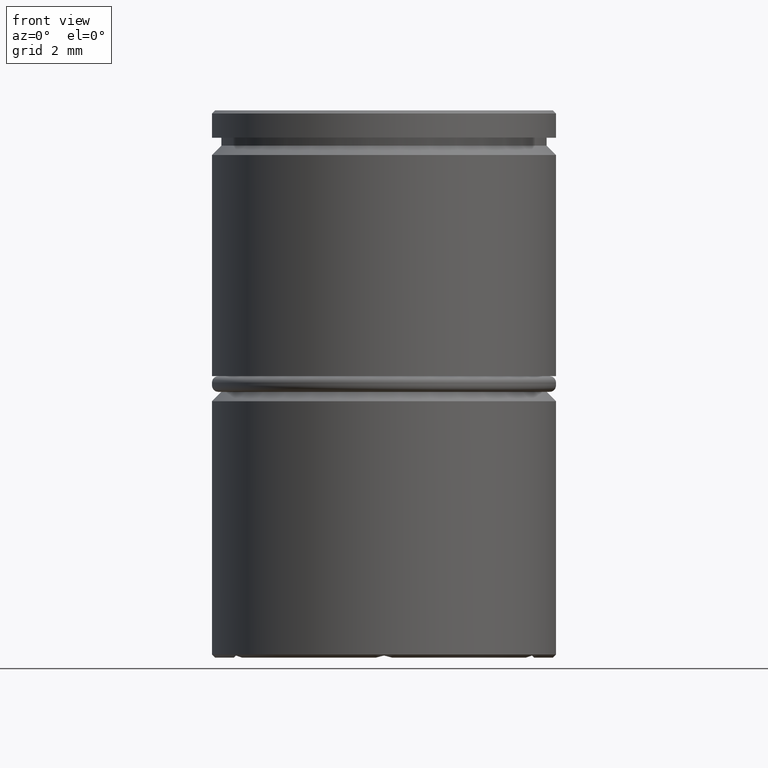
[diagram: clean part render]
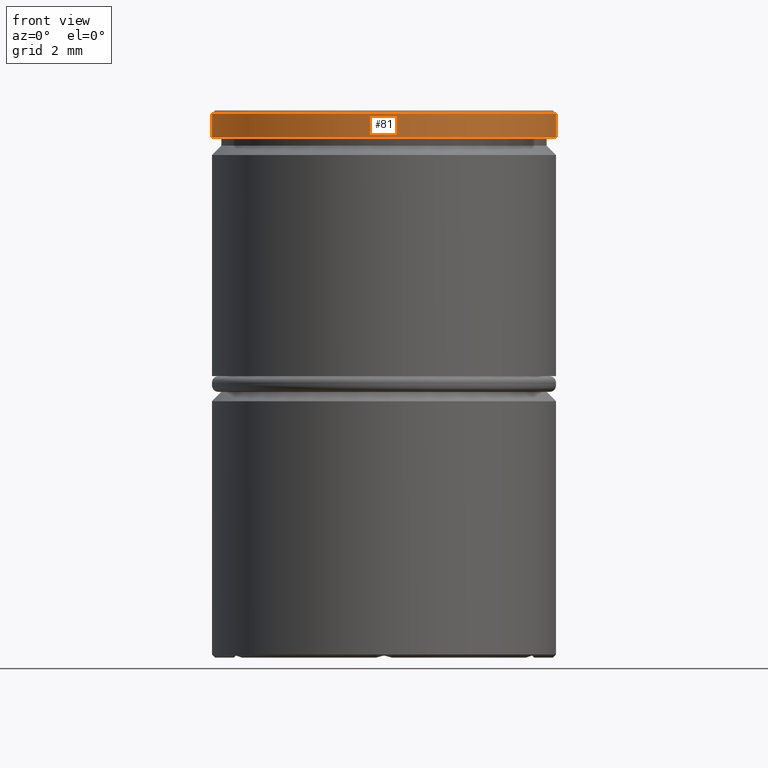
[diagram: same view with one face highlighted and labeled with its STEP entity id]
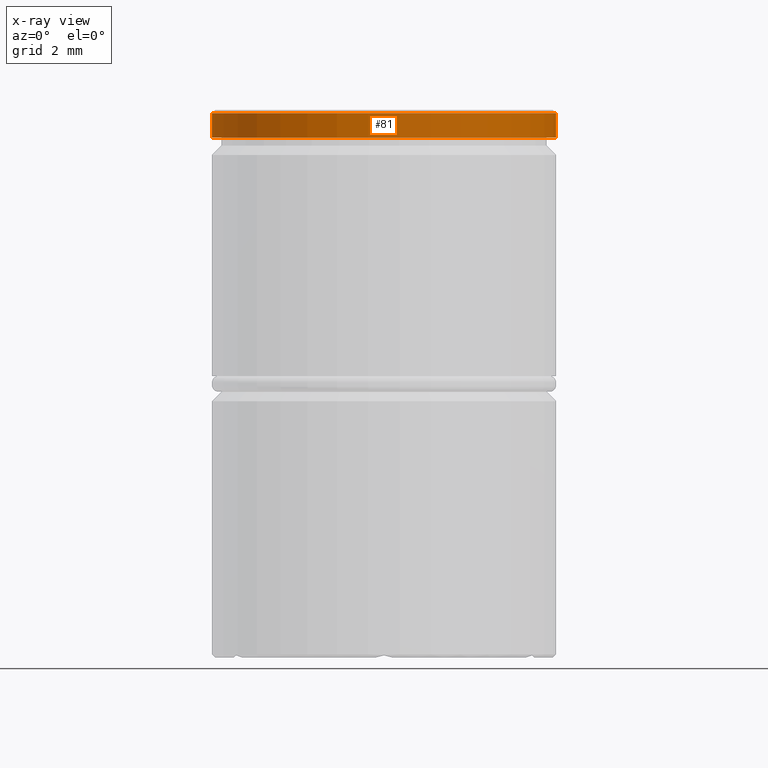
[diagram: x-ray of the same camera — body ghosted, the highlighted face saturated]
A machine part, front view. The second image highlights one B-rep face of the part: STEP entity #81.
The next image is the same camera in x-ray: the body ghosted, the highlighted face saturated — about 0% of this face is hidden behind the body in this view.
In plain terms, the highlighted cylindrical surface (partial cylindrical patch) has radius 5.5 mm, axis along (-0, -0, 1).
Its self-contained STEP definition (entity closure, byte-faithful):
#9 = EDGE_LOOP ( 'NONE', ( #677, #1192, #1324, #336 ) ) ;
#25 = DIRECTION ( 'NONE',  ( -0.000000000000000000, -0.000000000000000000, 1.000000000000000000 ) ) ;
#30 = CARTESIAN_POINT ( 'NONE',  ( -5.500000000000000000, 6.735557395310442023E-16, 0.000000000000000000 ) ) ;
#81 = ADVANCED_FACE ( 'NONE', ( #731 ), #1039, .T. ) ;
#84 = CARTESIAN_POINT ( 'NONE',  ( 0.000000000000000000, 0.000000000000000000, 0.000000000000000000 ) ) ;
#142 = EDGE_CURVE ( 'NONE', #760, #1325, #751, .T. ) ;
#149 = VECTOR ( 'NONE', #958, 1000.000000000000000 ) ;
#290 = CARTESIAN_POINT ( 'NONE',  ( 5.500000000000000000, 0.000000000000000000, -0.8749999999999998890 ) ) ;
#306 = CARTESIAN_POINT ( 'NONE',  ( 0.000000000000000000, 0.000000000000000000, -0.09999999999999592548 ) ) ;
#307 = CIRCLE ( 'NONE', #1312, 5.500000000000000000 ) ;
#325 = CARTESIAN_POINT ( 'NONE',  ( -5.500000000000000000, 6.735557395310442023E-16, -0.09999999999999592548 ) ) ;
#336 = ORIENTED_EDGE ( 'NONE', *, *, #1156, .T. ) ;
#390 = CARTESIAN_POINT ( 'NONE',  ( 0.000000000000000000, 0.000000000000000000, -0.8749999999999998890 ) ) ;
#411 = DIRECTION ( 'NONE',  ( 1.000000000000000000, 0.000000000000000000, 0.000000000000000000 ) ) ;
#491 = EDGE_CURVE ( 'NONE', #790, #760, #307, .T. ) ;
#511 = DIRECTION ( 'NONE',  ( -0.000000000000000000, -0.000000000000000000, 1.000000000000000000 ) ) ;
#520 = DIRECTION ( 'NONE',  ( 1.000000000000000000, 0.000000000000000000, 0.000000000000000000 ) ) ;
#618 = DIRECTION ( 'NONE',  ( 1.000000000000000000, 0.000000000000000000, 0.000000000000000000 ) ) ;
#624 = DIRECTION ( 'NONE',  ( 0.000000000000000000, 0.000000000000000000, -1.000000000000000000 ) ) ;
#646 = CARTESIAN_POINT ( 'NONE',  ( 5.500000000000000000, 0.000000000000000000, 0.000000000000000000 ) ) ;
#677 = ORIENTED_EDGE ( 'NONE', *, *, #1264, .F. ) ;
#731 = FACE_OUTER_BOUND ( 'NONE', #9, .T. ) ;
#751 = LINE ( 'NONE', #646, #149 ) ;
#760 = VERTEX_POINT ( 'NONE', #290 ) ;
#771 = AXIS2_PLACEMENT_3D ( 'NONE', #84, #511, #411 ) ;
#776 = CIRCLE ( 'NONE', #1335, 5.500000000000000000 ) ;
#790 = VERTEX_POINT ( 'NONE', #879 ) ;
#879 = CARTESIAN_POINT ( 'NONE',  ( -5.500000000000000000, 6.735557395310442023E-16, -0.8749999999999998890 ) ) ;
#958 = DIRECTION ( 'NONE',  ( -0.000000000000000000, -0.000000000000000000, 1.000000000000000000 ) ) ;
#978 = VECTOR ( 'NONE', #25, 1000.000000000000000 ) ;
#1039 = CYLINDRICAL_SURFACE ( 'NONE', #771, 5.500000000000000000 ) ;
#1074 = VERTEX_POINT ( 'NONE', #325 ) ;
#1082 = LINE ( 'NONE', #30, #978 ) ;
#1156 = EDGE_CURVE ( 'NONE', #1325, #1074, #776, .T. ) ;
#1192 = ORIENTED_EDGE ( 'NONE', *, *, #491, .T. ) ;
#1195 = CARTESIAN_POINT ( 'NONE',  ( 5.500000000000000000, 0.000000000000000000, -0.09999999999999592548 ) ) ;
#1264 = EDGE_CURVE ( 'NONE', #790, #1074, #1082, .T. ) ;
#1312 = AXIS2_PLACEMENT_3D ( 'NONE', #390, #1362, #618 ) ;
#1324 = ORIENTED_EDGE ( 'NONE', *, *, #142, .T. ) ;
#1325 = VERTEX_POINT ( 'NONE', #1195 ) ;
#1335 = AXIS2_PLACEMENT_3D ( 'NONE', #306, #624, #520 ) ;
#1362 = DIRECTION ( 'NONE',  ( -0.000000000000000000, -0.000000000000000000, 1.000000000000000000 ) ) ;